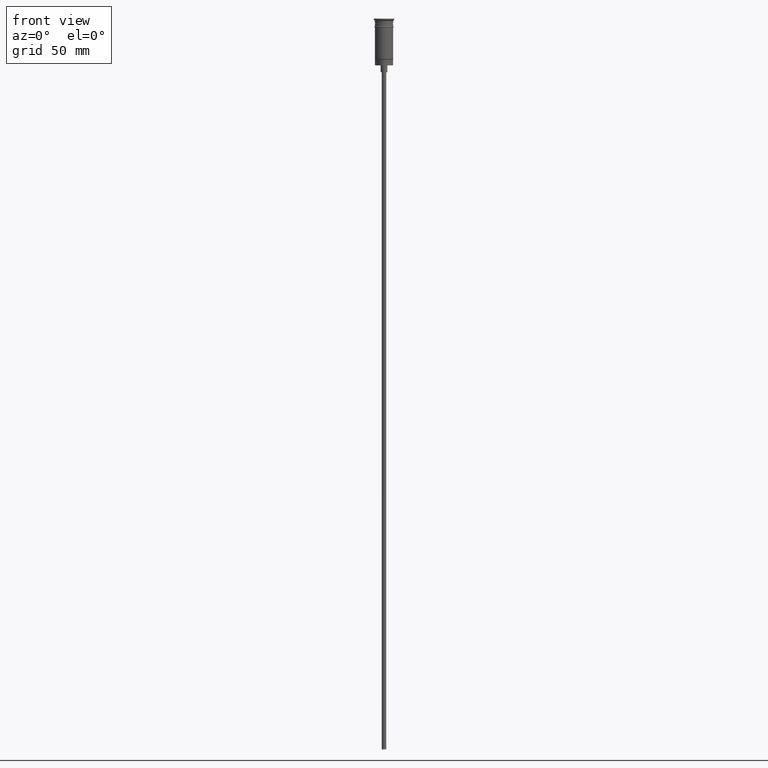
[diagram: clean part render]
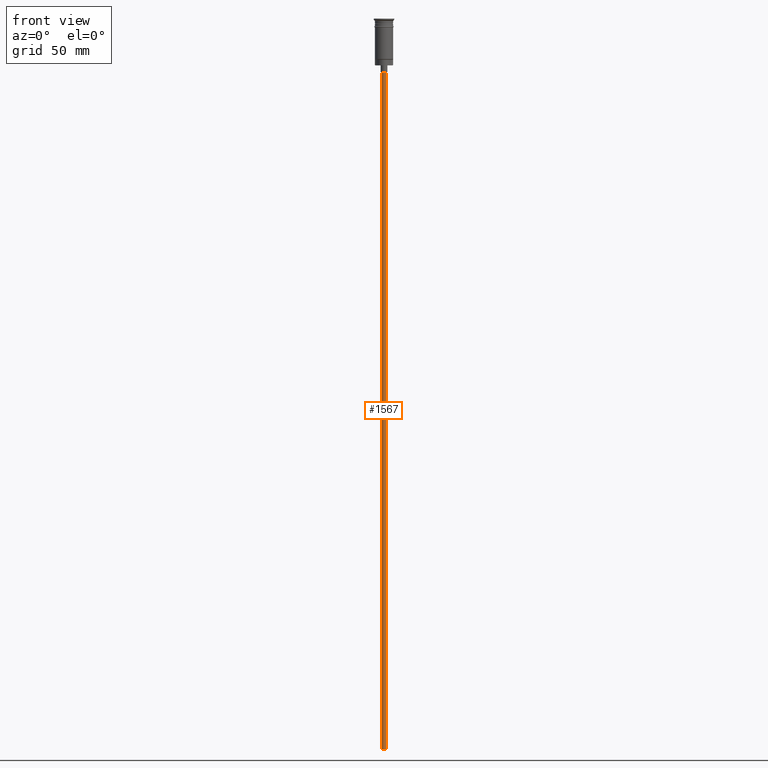
[diagram: same view with one face highlighted and labeled with its STEP entity id]
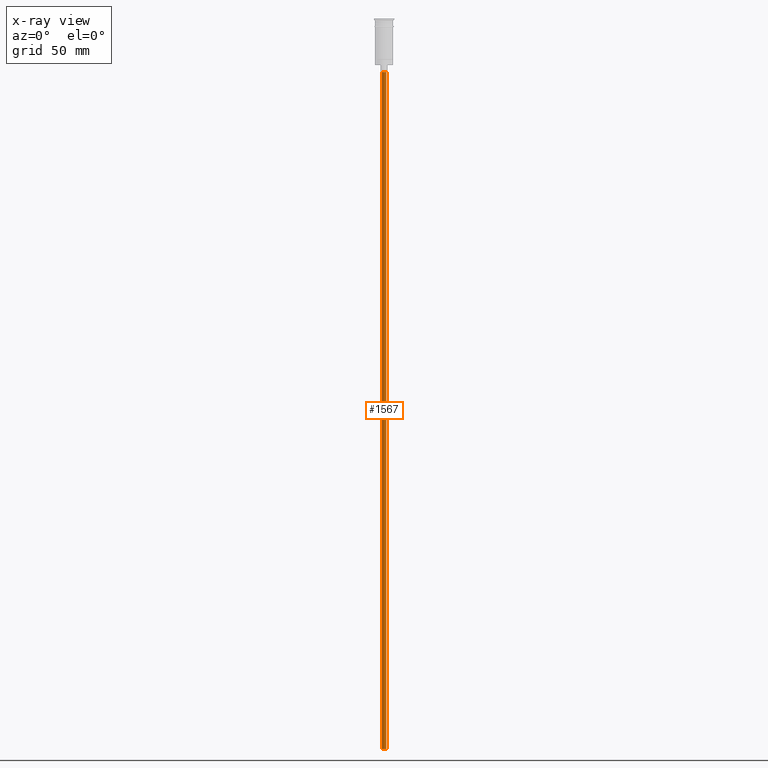
[diagram: x-ray of the same camera — body ghosted, the highlighted face saturated]
A machine part, front view. The second image highlights one B-rep face of the part: STEP entity #1567.
The next image is the same camera in x-ray: the body ghosted, the highlighted face saturated — about 0% of this face is hidden behind the body in this view.
In plain terms, the highlighted cylindrical surface (edge-blend (fillet) strip) has radius 1 mm, axis along (-0, -0, 1).
Its self-contained STEP definition (entity closure, byte-faithful):
#7 = DIRECTION ( 'NONE',  ( 0.000000000000000000, 0.000000000000000000, -1.000000000000000000 ) ) ;
#90 = CARTESIAN_POINT ( 'NONE',  ( -0.9999999999999997780, 1.224646799147352961E-16, -320.5000000000000000 ) ) ;
#110 = VERTEX_POINT ( 'NONE', #1425 ) ;
#129 = CIRCLE ( 'NONE', #534, 0.9999999999999997780 ) ;
#134 = CARTESIAN_POINT ( 'NONE',  ( 0.000000000000000000, 0.000000000000000000, -23.49999999999999645 ) ) ;
#188 = ORIENTED_EDGE ( 'NONE', *, *, #1475, .T. ) ;
#359 = ORIENTED_EDGE ( 'NONE', *, *, #714, .F. ) ;
#461 = DIRECTION ( 'NONE',  ( 0.000000000000000000, 0.000000000000000000, -1.000000000000000000 ) ) ;
#474 = DIRECTION ( 'NONE',  ( -0.000000000000000000, -0.000000000000000000, 1.000000000000000000 ) ) ;
#534 = AXIS2_PLACEMENT_3D ( 'NONE', #809, #461, #676 ) ;
#556 = ORIENTED_EDGE ( 'NONE', *, *, #1463, .T. ) ;
#586 = DIRECTION ( 'NONE',  ( -0.000000000000000000, -0.000000000000000000, 1.000000000000000000 ) ) ;
#618 = AXIS2_PLACEMENT_3D ( 'NONE', #1232, #586, #1091 ) ;
#623 = CYLINDRICAL_SURFACE ( 'NONE', #618, 0.9999999999999997780 ) ;
#672 = CARTESIAN_POINT ( 'NONE',  ( -0.9999999999999997780, 1.224646799147352961E-16, -23.49999999999999645 ) ) ;
#676 = DIRECTION ( 'NONE',  ( -1.000000000000000000, 0.000000000000000000, 0.000000000000000000 ) ) ;
#710 = DIRECTION ( 'NONE',  ( -0.000000000000000000, -0.000000000000000000, 1.000000000000000000 ) ) ;
#714 = EDGE_CURVE ( 'NONE', #110, #866, #1448, .T. ) ;
#744 = DIRECTION ( 'NONE',  ( -1.000000000000000000, 0.000000000000000000, 0.000000000000000000 ) ) ;
#809 = CARTESIAN_POINT ( 'NONE',  ( 0.000000000000000000, 0.000000000000000000, -320.5000000000000000 ) ) ;
#864 = VECTOR ( 'NONE', #710, 1000.000000000000000 ) ;
#866 = VERTEX_POINT ( 'NONE', #672 ) ;
#896 = CARTESIAN_POINT ( 'NONE',  ( 0.9999999999999997780, 0.000000000000000000, -23.49999999999999645 ) ) ;
#936 = VECTOR ( 'NONE', #474, 1000.000000000000000 ) ;
#951 = EDGE_CURVE ( 'NONE', #1287, #110, #129, .T. ) ;
#991 = CARTESIAN_POINT ( 'NONE',  ( 0.9999999999999997780, 0.000000000000000000, -320.5000000000000000 ) ) ;
#1039 = CIRCLE ( 'NONE', #1419, 0.9999999999999997780 ) ;
#1091 = DIRECTION ( 'NONE',  ( 1.000000000000000000, 0.000000000000000000, 0.000000000000000000 ) ) ;
#1115 = LINE ( 'NONE', #991, #864 ) ;
#1153 = ORIENTED_EDGE ( 'NONE', *, *, #951, .F. ) ;
#1212 = FACE_OUTER_BOUND ( 'NONE', #1507, .T. ) ;
#1232 = CARTESIAN_POINT ( 'NONE',  ( 0.000000000000000000, 0.000000000000000000, -320.5000000000000000 ) ) ;
#1287 = VERTEX_POINT ( 'NONE', #1393 ) ;
#1332 = VERTEX_POINT ( 'NONE', #896 ) ;
#1393 = CARTESIAN_POINT ( 'NONE',  ( 0.9999999999999997780, 0.000000000000000000, -320.5000000000000000 ) ) ;
#1419 = AXIS2_PLACEMENT_3D ( 'NONE', #134, #7, #744 ) ;
#1425 = CARTESIAN_POINT ( 'NONE',  ( -0.9999999999999997780, 1.224646799147352961E-16, -320.5000000000000000 ) ) ;
#1448 = LINE ( 'NONE', #90, #936 ) ;
#1463 = EDGE_CURVE ( 'NONE', #1287, #1332, #1115, .T. ) ;
#1475 = EDGE_CURVE ( 'NONE', #1332, #866, #1039, .T. ) ;
#1507 = EDGE_LOOP ( 'NONE', ( #359, #1153, #556, #188 ) ) ;
#1567 = ADVANCED_FACE ( 'NONE', ( #1212 ), #623, .T. ) ;